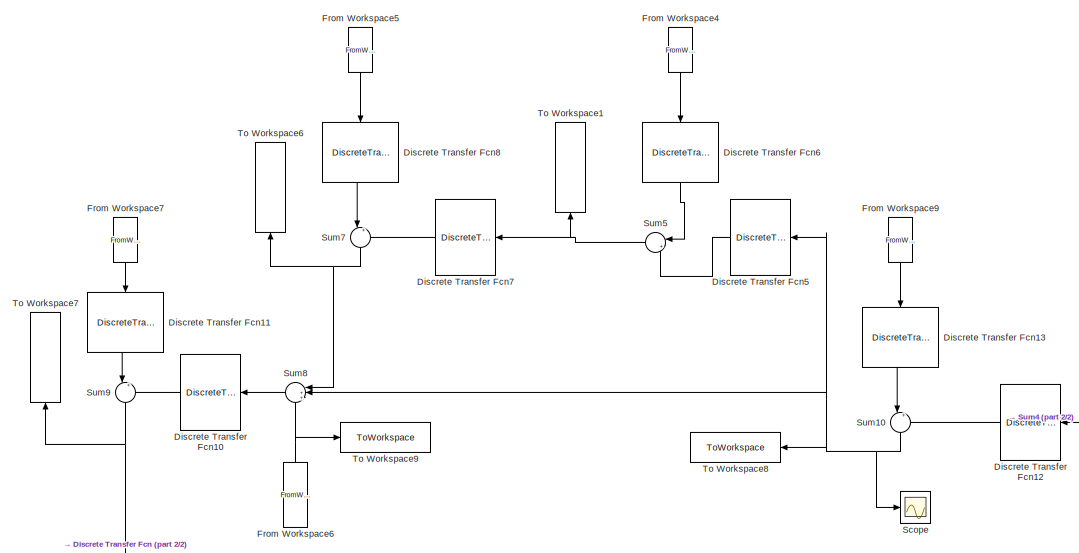
[diagram: root canvas - part 1/2, full width, top band]
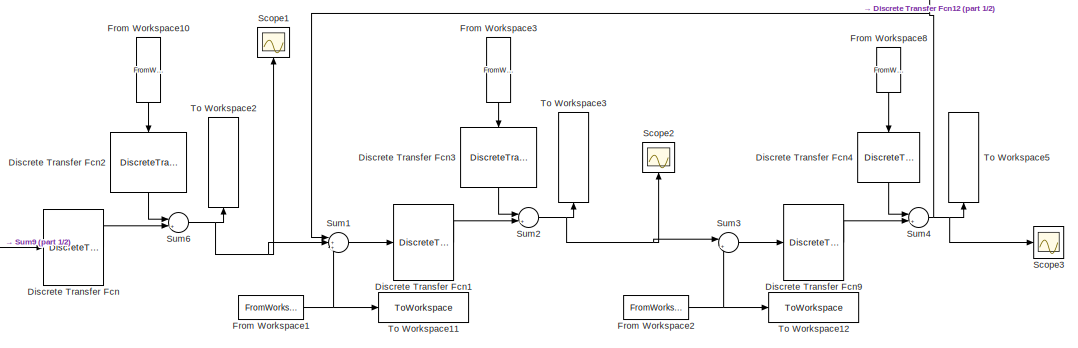
[diagram: root canvas - part 2/2, full width, bottom band]
MODEL slx_89f2b5bc3ffc
KIND model
CONFIG AbsTol = auto
CONFIG EnableMultiTasking = off
CONFIG FixedStep = 1
CONFIG MaxStep = auto
CONFIG MinStep = auto
CONFIG RelTol = 1e-3
CONFIG SampleTimeConstraint = Unconstrained
CONFIG SolverName = FixedStepDiscrete
CONFIG StartTime = 0.0
CONFIG StopTime = 499
BLOCK [DiscreteTransferFcn] Discrete Transfer Fcn
  Denominator = [1 theta(1) theta(2)]
  InputPortMap = u0
  Numerator = [theta(3) theta(4)]
BLOCK [DiscreteTransferFcn] Discrete Transfer Fcn1
  Denominator = [1 theta(7) theta(8)]
  InputPortMap = u0
  Numerator = [theta(9) theta(10)]
BLOCK [DiscreteTransferFcn] Discrete Transfer Fcn10
  Denominator = [1 theta(31) theta(32)]
  InputPortMap = u0
  NameLocation = top
  Numerator = [theta(33) theta(34)]
BLOCK [DiscreteTransferFcn] Discrete Transfer Fcn11
  Denominator = [1 theta(31) theta(32)]
  InputPortMap = u0
  NameLocation = left
  Numerator = [1 theta(35) theta(36)]
BLOCK [DiscreteTransferFcn] Discrete Transfer Fcn12
  Denominator = [1 theta(37) theta(38)]
  InputPortMap = u0
  NameLocation = top
  Numerator = [theta(39) theta(40)]
BLOCK [DiscreteTransferFcn] Discrete Transfer Fcn13
  Denominator = [1 theta(37) theta(38)]
  InputPortMap = u0
  NameLocation = left
  Numerator = [1 theta(41) theta(42)]
BLOCK [DiscreteTransferFcn] Discrete Transfer Fcn2
  Denominator = [1 theta(1) theta(2)]
  InputPortMap = u0
  NameLocation = left
  Numerator = [1 theta(5) theta(6)]
BLOCK [DiscreteTransferFcn] Discrete Transfer Fcn3
  Denominator = [1 theta(7) theta(8)]
  InputPortMap = u0
  NameLocation = left
  Numerator = [1 theta(11) theta(12)]
BLOCK [DiscreteTransferFcn] Discrete Transfer Fcn4
  Denominator = [1 theta(13) theta(14)]
  InputPortMap = u0
  NameLocation = left
  Numerator = [1 theta(17) theta(18)]
BLOCK [DiscreteTransferFcn] Discrete Transfer Fcn5
  Denominator = [1 theta(19) theta(20)]
  InputPortMap = u0
  NameLocation = top
  Numerator = [theta(21) theta(22)]
BLOCK [DiscreteTransferFcn] Discrete Transfer Fcn6
  Denominator = [1 theta(19) theta(20)]
  InputPortMap = u0
  NameLocation = left
  Numerator = [1 theta(23) theta(24)]
BLOCK [DiscreteTransferFcn] Discrete Transfer Fcn7
  Denominator = [1 theta(25) theta(26)]
  InputPortMap = u0
  NameLocation = top
  Numerator = [theta(27) theta(28)]
BLOCK [DiscreteTransferFcn] Discrete Transfer Fcn8
  Denominator = [1 theta(25) theta(26)]
  InputPortMap = u0
  NameLocation = left
  Numerator = [1 theta(29) theta(30)]
BLOCK [DiscreteTransferFcn] Discrete Transfer Fcn9
  Denominator = [1 theta(13) theta(14)]
  InputPortMap = u0
  Numerator = [theta(15) theta(16)]
BLOCK [FromWorkspace] From Workspace1
  Interpolate = off
  OutputAfterFinalValue = Holding final value
  SampleTime = 1
  VariableName = r1
BLOCK [FromWorkspace] From Workspace10
  Interpolate = off
  NameLocation = left
  OutputAfterFinalValue = Holding final value
  SampleTime = 1
  VariableName = e1
BLOCK [FromWorkspace] From Workspace2
  Interpolate = off
  OutputAfterFinalValue = Holding final value
  SampleTime = 1
  VariableName = r2
BLOCK [FromWorkspace] From Workspace3
  Interpolate = off
  NameLocation = left
  OutputAfterFinalValue = Holding final value
  SampleTime = 1
  VariableName = e2
BLOCK [FromWorkspace] From Workspace4
  Interpolate = off
  NameLocation = left
  OutputAfterFinalValue = Holding final value
  SampleTime = 1
  VariableName = e4
BLOCK [FromWorkspace] From Workspace5
  Interpolate = off
  NameLocation = left
  OutputAfterFinalValue = Holding final value
  SampleTime = 1
  VariableName = e5
BLOCK [FromWorkspace] From Workspace6
  Interpolate = off
  NameLocation = right
  OutputAfterFinalValue = Holding final value
  SampleTime = 1
  VariableName = r3
BLOCK [FromWorkspace] From Workspace7
  Interpolate = off
  NameLocation = left
  OutputAfterFinalValue = Holding final value
  SampleTime = 1
  VariableName = e6
BLOCK [FromWorkspace] From Workspace8
  Interpolate = off
  NameLocation = left
  OutputAfterFinalValue = Holding final value
  SampleTime = 1
  VariableName = e3
BLOCK [FromWorkspace] From Workspace9
  Interpolate = off
  NameLocation = left
  OutputAfterFinalValue = Holding final value
  SampleTime = 1
  VariableName = e7
BLOCK [Scope] Scope
  Floating = off
  NumInputPorts = 1
  ScopeSpecificationString = Simulink.scopes.TimeScopeBlockCfg('CurrentConfiguration', extmgr.ConfigurationSet(extmgr.Configuration('Core','General UI',true),extmgr.Configuration('Core','Source UI',true),extmgr.Configuration('Sources','WiredSimulink',true),extmgr.Configuration('Visuals','Time Domain',true,'SerializedDisplays',{struct('MinYLimReal','-2.08346','MaxYLimReal','0.39816','YLabelReal','','MinYLimMag','0.00000','MaxY...<+1414ch>
BLOCK [Scope] Scope1
  Floating = off
  NameLocation = right
  NumInputPorts = 1
  ScopeSpecificationString = Simulink.scopes.TimeScopeBlockCfg('CurrentConfiguration', extmgr.ConfigurationSet(extmgr.Configuration('Core','General UI',true),extmgr.Configuration('Core','Source UI',true),extmgr.Configuration('Sources','WiredSimulink',true,'DataLoggingVariableName','ScopeData1'),extmgr.Configuration('Visuals','Time Domain',true,'SerializedDisplays',{struct('MinYLimReal','0.26906','MaxYLimReal','3.57848','YLabe...<+1450ch>
BLOCK [Scope] Scope2
  Floating = off
  NameLocation = right
  NumInputPorts = 1
  ScopeSpecificationString = Simulink.scopes.TimeScopeBlockCfg('CurrentConfiguration', extmgr.ConfigurationSet(extmgr.Configuration('Core','General UI',true),extmgr.Configuration('Core','Source UI',true),extmgr.Configuration('Sources','WiredSimulink',true,'DataLoggingVariableName','ScopeData2'),extmgr.Configuration('Visuals','Time Domain',true,'SerializedDisplays',{struct('MinYLimReal','-0.64899','MaxYLimReal','1.87414','YLab...<+1452ch>
BLOCK [Scope] Scope3
  Floating = off
  NumInputPorts = 1
  ScopeSpecificationString = Simulink.scopes.TimeScopeBlockCfg('CurrentConfiguration', extmgr.ConfigurationSet(extmgr.Configuration('Core','General UI',true),extmgr.Configuration('Core','Source UI',true),extmgr.Configuration('Sources','WiredSimulink',true,'DataLoggingVariableName','ScopeData3'),extmgr.Configuration('Visuals','Time Domain',true,'SerializedDisplays',{struct('MinYLimReal','-2.1513','MaxYLimReal','0.23903','YLabe...<+1448ch>
BLOCK [Sum] Sum1
  Inputs = |+++
BLOCK [Sum] Sum10
  Inputs = |++
  NameLocation = left
BLOCK [Sum] Sum2
  Inputs = |++
BLOCK [Sum] Sum3
  Inputs = |++
BLOCK [Sum] Sum4
  Inputs = |++
BLOCK [Sum] Sum5
  Inputs = |++
  NameLocation = top
BLOCK [Sum] Sum6
  Inputs = |++
BLOCK [Sum] Sum7
  Inputs = |++
  NameLocation = left
BLOCK [Sum] Sum8
  Inputs = |+++
  NameLocation = top
BLOCK [Sum] Sum9
  Inputs = |++
  NameLocation = left
BLOCK [ToWorkspace] To Workspace1
  FixptAsFi = on
  MaxDataPoints = inf
  NameLocation = right
  SampleTime = -1
  VariableName = y4
BLOCK [ToWorkspace] To Workspace11
  FixptAsFi = on
  MaxDataPoints = inf
  SampleTime = -1
  VariableName = r1
BLOCK [ToWorkspace] To Workspace12
  FixptAsFi = on
  MaxDataPoints = inf
  SampleTime = -1
  VariableName = r2
BLOCK [ToWorkspace] To Workspace2
  FixptAsFi = on
  MaxDataPoints = inf
  NameLocation = right
  SampleTime = -1
  VariableName = y1
BLOCK [ToWorkspace] To Workspace3
  FixptAsFi = on
  MaxDataPoints = inf
  NameLocation = right
  SampleTime = -1
  VariableName = y2
BLOCK [ToWorkspace] To Workspace5
  FixptAsFi = on
  MaxDataPoints = inf
  NameLocation = right
  SampleTime = -1
  VariableName = y3
BLOCK [ToWorkspace] To Workspace6
  FixptAsFi = on
  MaxDataPoints = inf
  NameLocation = right
  SampleTime = -1
  VariableName = y5
BLOCK [ToWorkspace] To Workspace7
  FixptAsFi = on
  MaxDataPoints = inf
  NameLocation = right
  SampleTime = -1
  VariableName = y6
BLOCK [ToWorkspace] To Workspace8
  FixptAsFi = on
  MaxDataPoints = inf
  NameLocation = top
  SampleTime = -1
  VariableName = y7
BLOCK [ToWorkspace] To Workspace9
  FixptAsFi = on
  MaxDataPoints = inf
  SampleTime = -1
  VariableName = r3
LINE Discrete Transfer Fcn10:1 -> Sum9:2
LINE Discrete Transfer Fcn11:1 -> Sum9:1
LINE Discrete Transfer Fcn12:1 -> Sum10:2
LINE Discrete Transfer Fcn13:1 -> Sum10:1
LINE Discrete Transfer Fcn1:1 -> Sum2:2
LINE Discrete Transfer Fcn2:1 -> Sum6:1
LINE Discrete Transfer Fcn3:1 -> Sum2:1
LINE Discrete Transfer Fcn4:1 -> Sum4:1
LINE Discrete Transfer Fcn5:1 -> Sum5:2
LINE Discrete Transfer Fcn6:1 -> Sum5:1
LINE Discrete Transfer Fcn7:1 -> Sum7:2
LINE Discrete Transfer Fcn8:1 -> Sum7:1
LINE Discrete Transfer Fcn9:1 -> Sum4:2
LINE Discrete Transfer Fcn:1 -> Sum6:2
LINE From Workspace10:1 -> Discrete Transfer Fcn2:1
NET From Workspace1:1 -> Sum1:3, To Workspace11:1
NET From Workspace2:1 -> Sum3:2, To Workspace12:1
LINE From Workspace3:1 -> Discrete Transfer Fcn3:1
LINE From Workspace4:1 -> Discrete Transfer Fcn6:1
LINE From Workspace5:1 -> Discrete Transfer Fcn8:1
NET From Workspace6:1 -> Sum8:3, To Workspace9:1
LINE From Workspace7:1 -> Discrete Transfer Fcn11:1
LINE From Workspace8:1 -> Discrete Transfer Fcn4:1
LINE From Workspace9:1 -> Discrete Transfer Fcn13:1
NET Sum10:1 -> Discrete Transfer Fcn5:1, Scope:1, Sum8:2, To Workspace8:1
LINE Sum1:1 -> Discrete Transfer Fcn1:1
NET Sum2:1 -> Scope2:1, Sum3:1, To Workspace3:1
LINE Sum3:1 -> Discrete Transfer Fcn9:1
NET Sum4:1 -> Discrete Transfer Fcn12:1, Scope3:1, Sum1:1, To Workspace5:1
NET Sum5:1 -> Discrete Transfer Fcn7:1, To Workspace1:1
NET Sum6:1 -> Scope1:1, Sum1:2, To Workspace2:1
NET Sum7:1 -> Sum8:1, To Workspace6:1
LINE Sum8:1 -> Discrete Transfer Fcn10:1
NET Sum9:1 -> Discrete Transfer Fcn:1, To Workspace7:1
note: NET lines group one-source signal fan-out (src -> all destinations, sorted); 1:1 wires keep LINE
